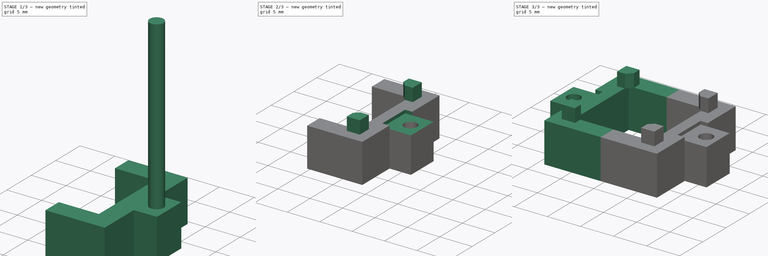
[diagram: build sequence overview — one tinted view per stage of 3, left to right]
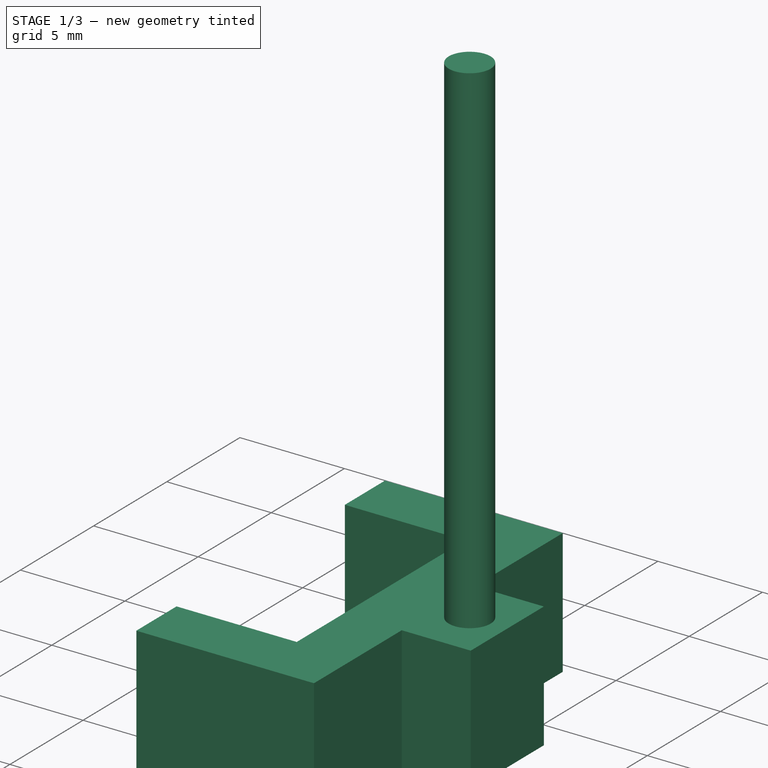
[diagram: stage 1 of 3 — iso view after this stage's code; geometry added in this stage tinted green]
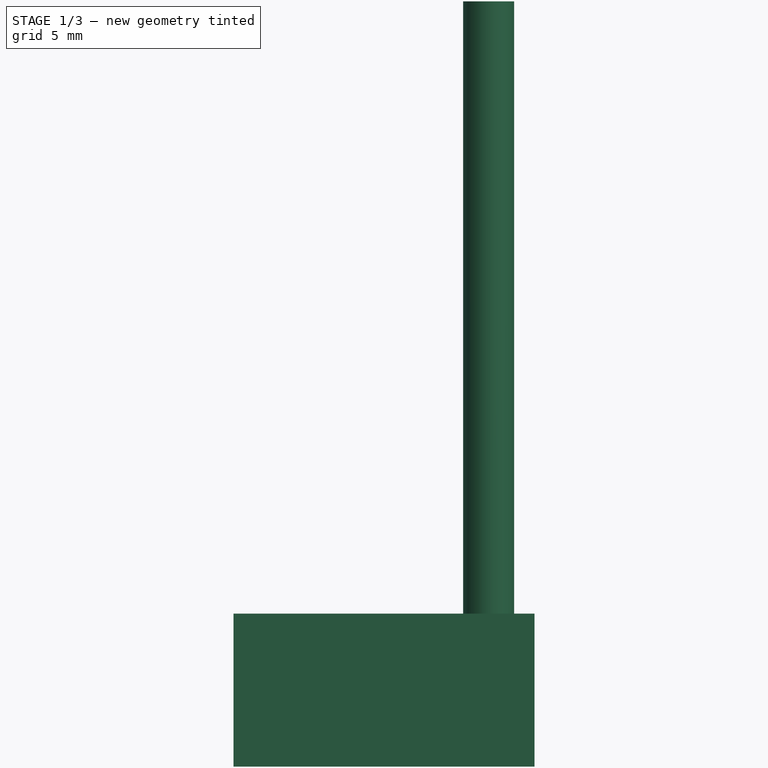
[diagram: stage 1 of 3 — front view after this stage's code; geometry added in this stage tinted green]
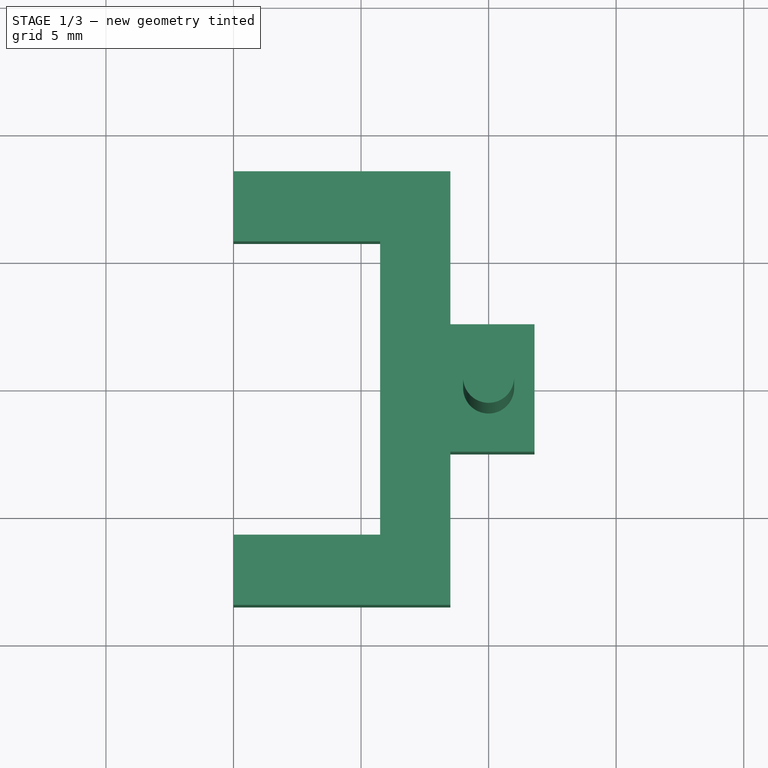
[diagram: stage 1 of 3 — top view after this stage's code; geometry added in this stage tinted green]
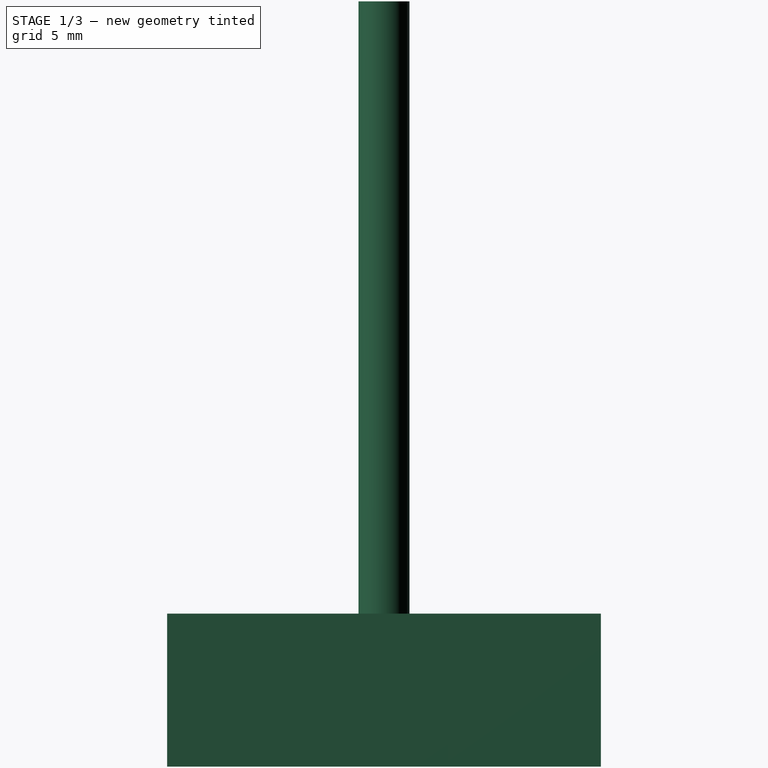
[diagram: stage 1 of 3 — right view after this stage's code; geometry added in this stage tinted green]
FCSTD DOCUMENT  (FreeCAD 0.15R4606 (Git))
Label: lens_holder
License: All rights reserved
LicenseURL: http://en.wikipedia.org/wiki/All_rights_reserved
objects: Sketcher::SketchObject×5, App::MeasureDistance×4, PartDesign::Pad×3, Part::Cut×1, PartDesign::Pocket×1, Part::Mirroring×1, Part::MultiFuse×1
note: 16 computed .brp shape members not serialized (recipe doc carries the construction recipe); baked Part::Feature solids carry a one-line shape summary decoded from their .brp

FEATURE [Sketcher::SketchObject] Sketch
  sketch-geometry (12):
    g0: LineSegment StartX=0 StartY=8.5 StartZ=0 EndX=8.5 EndY=8.5 EndZ=0
    g1: LineSegment StartX=8.5 StartY=8.5 StartZ=0 EndX=8.5 EndY=2.5 EndZ=0
    g2: LineSegment StartX=0 StartY=8.5 StartZ=0 EndX=0 EndY=5.75 EndZ=0
    g3: LineSegment StartX=0 StartY=5.75 StartZ=0 EndX=5.75 EndY=5.75 EndZ=0
    g4: LineSegment StartX=5.75 StartY=5.75 StartZ=0 EndX=5.75 EndY=-5.75 EndZ=0
    g5: LineSegment StartX=8.5 StartY=2.5 StartZ=0 EndX=11.8 EndY=2.5 EndZ=0
    g6: LineSegment StartX=11.8 StartY=2.5 StartZ=0 EndX=11.8 EndY=-2.5 EndZ=0
    g7: LineSegment StartX=11.8 StartY=-2.5 StartZ=0 EndX=8.5 EndY=-2.5 EndZ=0
    g8: LineSegment StartX=8.5 StartY=-2.5 StartZ=0 EndX=8.5 EndY=-8.5 EndZ=0
    g9: LineSegment StartX=8.5 StartY=-8.5 StartZ=0 EndX=0 EndY=-8.5 EndZ=0
    g10: LineSegment StartX=0 StartY=-8.5 StartZ=0 EndX=0 EndY=-5.75 EndZ=0
    g11: LineSegment StartX=0 StartY=-5.75 StartZ=0 EndX=5.75 EndY=-5.75 EndZ=0
  constraints (35):
    c: Horizontal(g0)
    c: Coincident(g0,g1)
    c: Vertical(g1)
    c: PointOnObject(g0,g-2)
    c: Distance(g0) = 8.5
    c: Vertical(g2)
    c: Coincident(g2,g3)
    c: Horizontal(g3)
    c: Coincident(g3,g4)
    c: Vertical(g4)
    c: Horizontal(g5)
    c: Coincident(g5,g6)
    c: Vertical(g6)
    c: Coincident(g6,g7)
    c: Horizontal(g7)
    c: Coincident(g1,g5)
    c: Coincident(g7,g8)
    c: Vertical(g8)
    c: Coincident(g8,g9)
    c: Horizontal(g9)
    c: Coincident(g9,g10)
    c: Vertical(g10)
    c: Coincident(g10,g11)
    c: Horizontal(g11)
    c: Coincident(g4,g11)
    c: Coincident(g2,g0)
    c: PointOnObject(g10,g-2)
    c: Symmetric(g2,g10,g-1)
    c: DistanceY(g9,g0) = 17
    c: Symmetric(g7,g1,g-1)
    c: DistanceY(g2,g10) = -11.5
    c: Equal(g2,g10)
    c: DistanceX(g10,g4) = 5.75
    c: Distance(g6) = 5
    c: Distance(g7,g6) = 3.3
FEATURE [PartDesign::Pad] Pad
  Length = 6
  Length2 = 100
  Sketch = -> Sketch
  Type = 0
FEATURE [Sketcher::SketchObject] Sketch002
  sketch-geometry (1):
    g0: Circle CenterX=10 CenterY=0 CenterZ=0 NormalX=0 NormalY=0 NormalZ=1 Radius=1
  constraints (3):
    c: PointOnObject(g0,g-1)
    c: Radius(g0) = 1
    c: Distance(g-1,g0) = 10
FEATURE [PartDesign::Pad] Pad002  label="Screw Hole"
  Length = 30
  Length2 = 100
  Sketch = -> Sketch002
  Type = 0
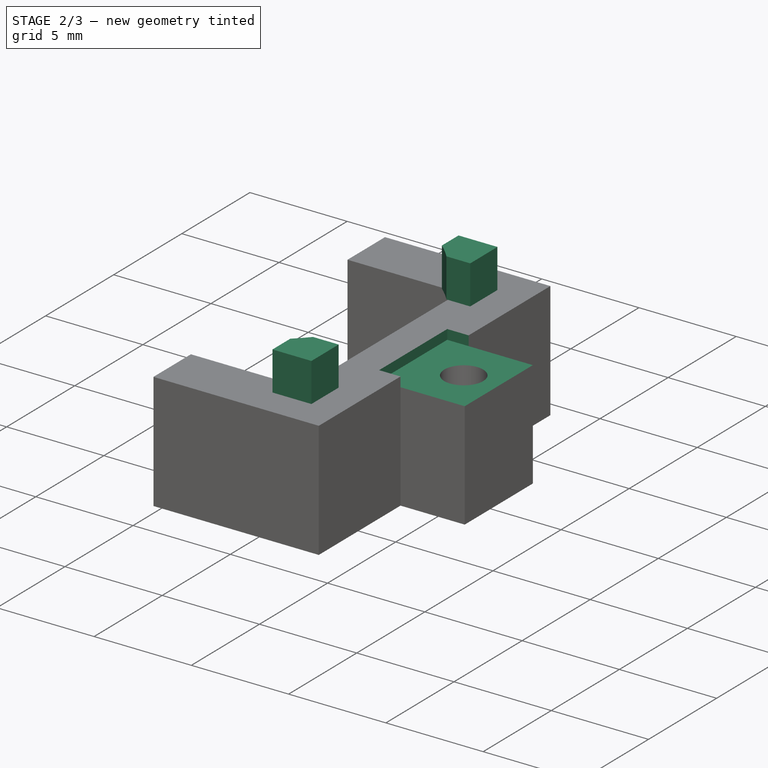
[diagram: stage 2 of 3 — iso view after this stage's code; geometry added in this stage tinted green]
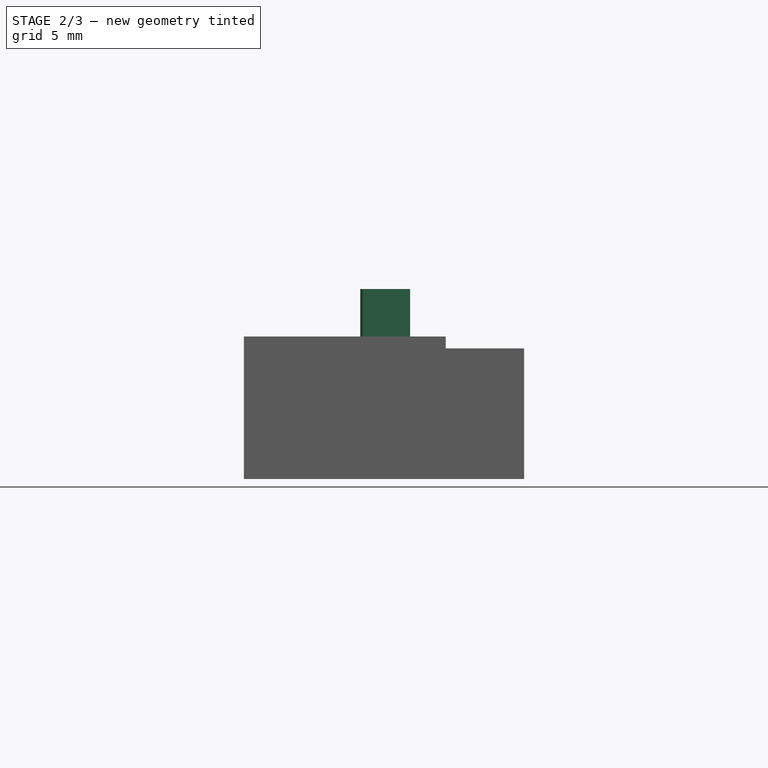
[diagram: stage 2 of 3 — front view after this stage's code; geometry added in this stage tinted green]
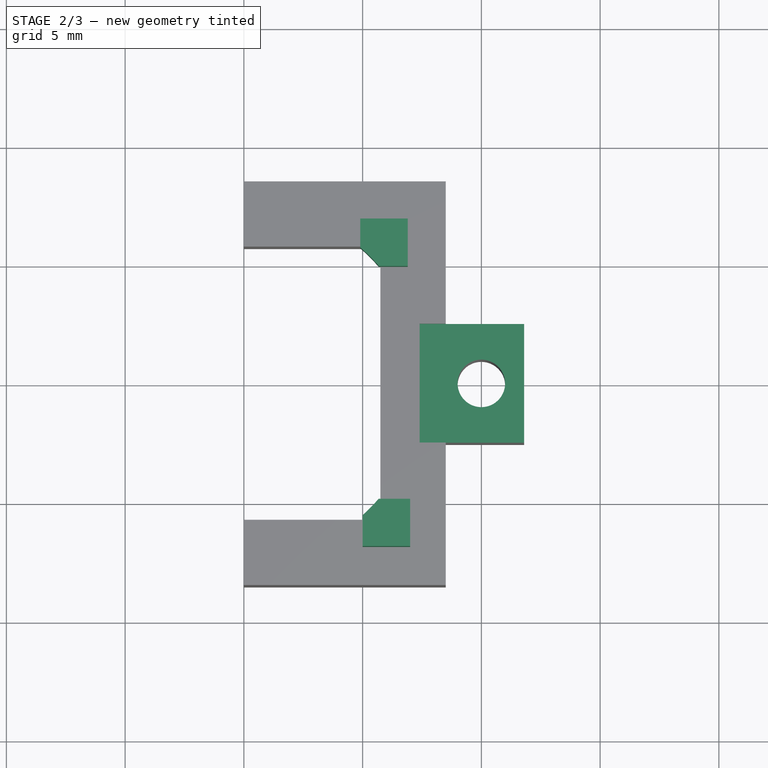
[diagram: stage 2 of 3 — top view after this stage's code; geometry added in this stage tinted green]
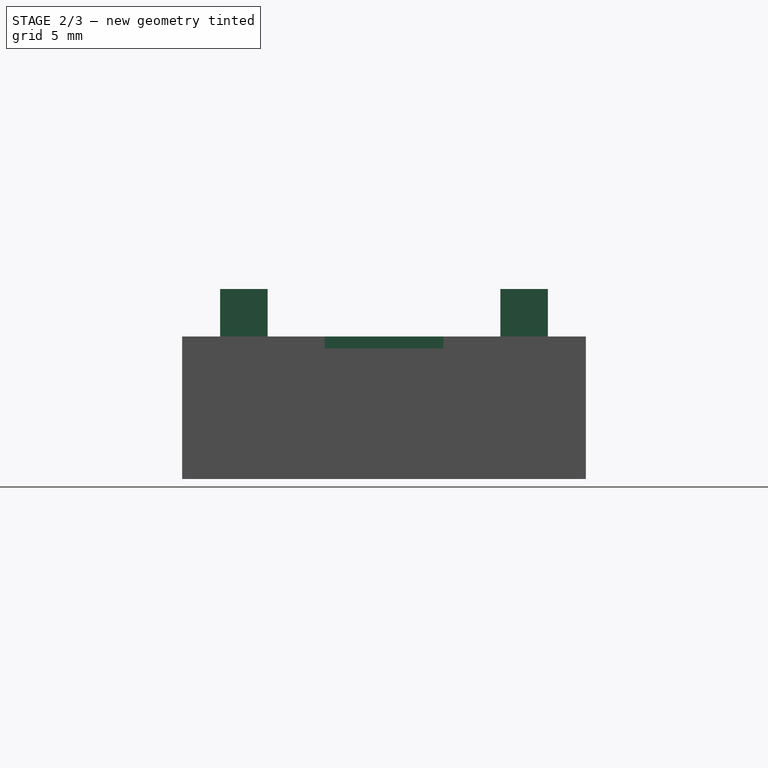
[diagram: stage 2 of 3 — right view after this stage's code; geometry added in this stage tinted green]
FEATURE [Sketcher::SketchObject] Sketch001
  Placement = pos=(0,0,6) rot=(0,0,1;0rad)
  Support = -> Pad [Face14]
  sketch-geometry (10):
    g0: LineSegment StartX=4.9 StartY=6.9 StartZ=0 EndX=6.9 EndY=6.9 EndZ=0
    g1: LineSegment StartX=6.9 StartY=6.9 StartZ=0 EndX=6.9 EndY=4.9 EndZ=0
    g2: LineSegment StartX=7 StartY=-4.9 StartZ=0 EndX=7 EndY=-6.9 EndZ=0
    g3: LineSegment StartX=7 StartY=-6.9 StartZ=0 EndX=5 EndY=-6.9 EndZ=0
    g4: ArcOfCircle CenterX=0 CenterY=0 CenterZ=0 NormalX=0 NormalY=0 NormalZ=1 Radius=7.5 StartAngle=0.711979 EndAngle=0.858817
    g5: LineSegment StartX=4.9 StartY=6.9 StartZ=0 EndX=4.9 EndY=5.67803 EndZ=0
    g6: LineSegment StartX=5.67803 StartY=4.9 StartZ=0 EndX=6.9 EndY=4.9 EndZ=0
    g7: ArcOfCircle CenterX=0 CenterY=0 CenterZ=0 NormalX=0 NormalY=0 NormalZ=1 Radius=7.5 StartAngle=5.44212 EndAngle=5.57121
    g8: LineSegment StartX=5.67803 StartY=-4.9 StartZ=0 EndX=7 EndY=-4.9 EndZ=0
    g9: LineSegment StartX=5 StartY=-5.59017 StartZ=0 EndX=5 EndY=-6.9 EndZ=0
  constraints (30):
    c: Coincident(g0,g1)
    c: Horizontal(g0)
    c: Vertical(g1)
    c: Coincident(g2,g3)
    c: Horizontal(g3)
    c: Vertical(g2)
    c: Distance(g3) = 2
    c: Distance(g0) = 2
    c: DistanceY(g0,g1) = -2
    c: Radius(g4) = 7.5
    c: Coincident(g4,g-1)
    c: Vertical(g5)
    c: Coincident(g5,g4)
    c: Coincident(g0,g5)
    c: Horizontal(g6)
    c: Coincident(g1,g6)
    c: Coincident(g4,g6)
    c: DistanceX(g-1,g0) = 4.9
    c: DistanceY(g-1,g1) = 4.9
    c: Coincident(g-1,g7)
    c: Radius(g7) = 7.5
    c: Horizontal(g8)
    c: Coincident(g2,g8)
    c: Coincident(g7,g8)
    c: Vertical(g9)
    c: Coincident(g7,g9)
    c: Coincident(g3,g9)
    c: Distance(g2) = 2
    c: DistanceX(g-1,g3) = 5
    c: DistanceY(g-1,g2) = -4.9
FEATURE [PartDesign::Pad] Pad001
  Length = 2
  Length2 = 100
  Sketch = -> Sketch001
  Type = 0
FEATURE [Part::Cut] Cut
  Base = -> Pad001
  Tool = -> Pad002
FEATURE [Sketcher::SketchObject] Sketch003
  Placement = pos=(0,0,6) rot=(0,0,1;0rad)
  Support = -> Cut [Face5]
  sketch-geometry (4):
    g0: LineSegment StartX=7.4 StartY=2.5 StartZ=0 EndX=12.4 EndY=2.5 EndZ=0
    g1: LineSegment StartX=12.4 StartY=2.5 StartZ=0 EndX=12.4 EndY=-2.5 EndZ=0
    g2: LineSegment StartX=12.4 StartY=-2.5 StartZ=0 EndX=7.4 EndY=-2.5 EndZ=0
    g3: LineSegment StartX=7.4 StartY=-2.5 StartZ=0 EndX=7.4 EndY=2.5 EndZ=0
  constraints (12):
    c: Coincident(g0,g1)
    c: Coincident(g1,g2)
    c: Coincident(g2,g3)
    c: Coincident(g3,g0)
    c: Horizontal(g0)
    c: Horizontal(g2)
    c: Vertical(g1)
    c: Vertical(g3)
    c: DistanceX(g-1,g0) = 7.4
    c: Symmetric(g0,g1,g-1)
    c: Distance(g2) = 5
    c: Distance(g1) = 5
FEATURE [Sketcher::SketchObject] Sketch004
  Placement = pos=(0,0,6) rot=(0,0,1;0rad)
  Support = -> Pad001 [Face5]
  sketch-geometry (4):
    g0: LineSegment StartX=7.6 StartY=3 StartZ=0 EndX=12.6 EndY=3 EndZ=0
    g1: LineSegment StartX=12.6 StartY=3 StartZ=0 EndX=12.6 EndY=-3 EndZ=0
    g2: LineSegment StartX=12.6 StartY=-3 StartZ=0 EndX=7.6 EndY=-3 EndZ=0
    g3: LineSegment StartX=7.6 StartY=-3 StartZ=0 EndX=7.6 EndY=3 EndZ=0
  constraints (12):
    c: Coincident(g0,g1)
    c: Coincident(g1,g2)
    c: Coincident(g2,g3)
    c: Coincident(g3,g0)
    c: Horizontal(g0)
    c: Horizontal(g2)
    c: Vertical(g1)
    c: Vertical(g3)
    c: DistanceX(g-1,g0) = 7.6
    c: Symmetric(g0,g1,g-1)
    c: Distance(g2) = 5
    c: Distance(g1) = 6
FEATURE [PartDesign::Pocket] Pocket
  Length = 0.5
  Sketch = -> Sketch003
  Type = 0
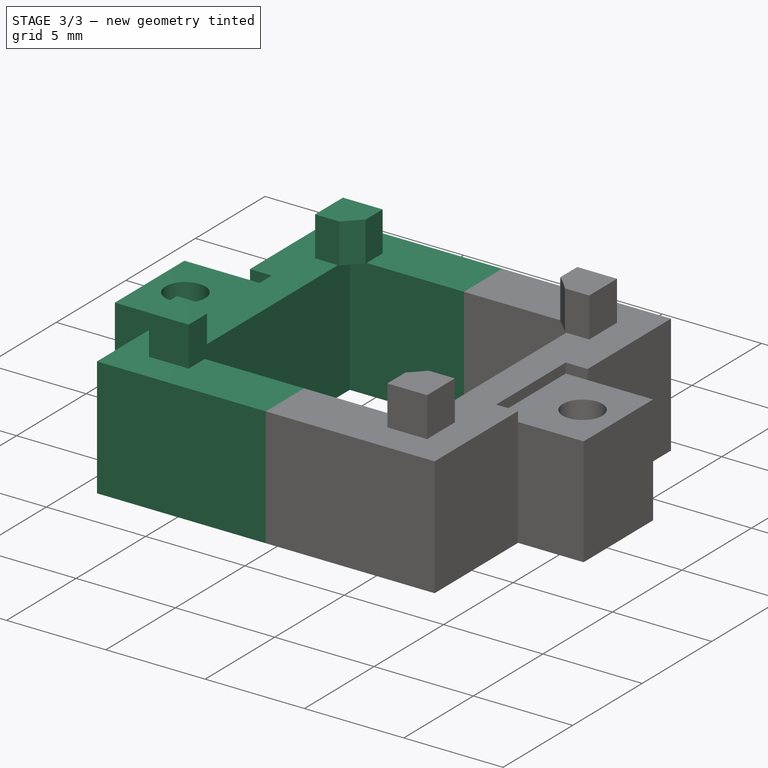
[diagram: stage 3 of 3 — iso view after this stage's code; geometry added in this stage tinted green]
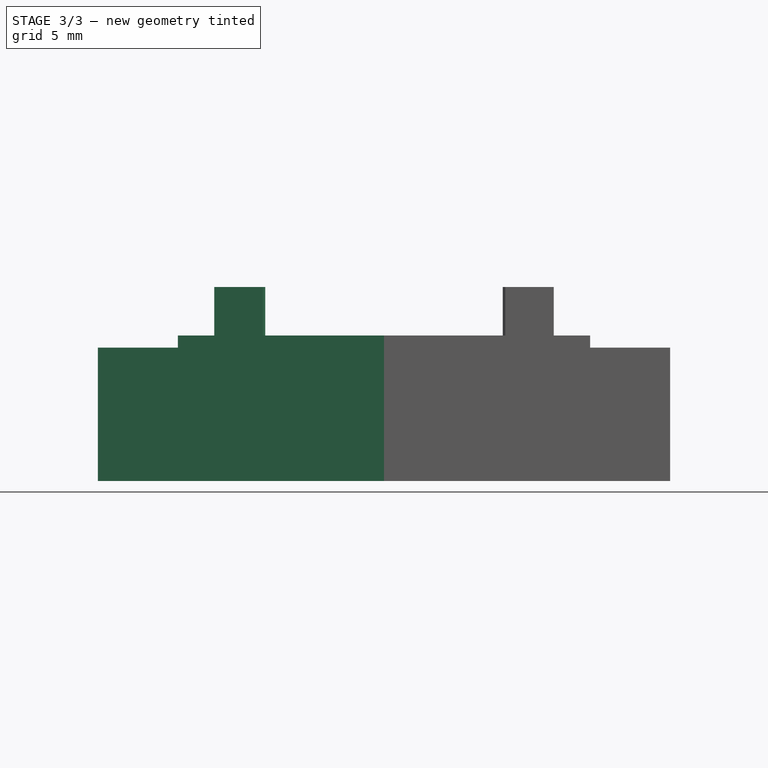
[diagram: stage 3 of 3 — front view after this stage's code; geometry added in this stage tinted green]
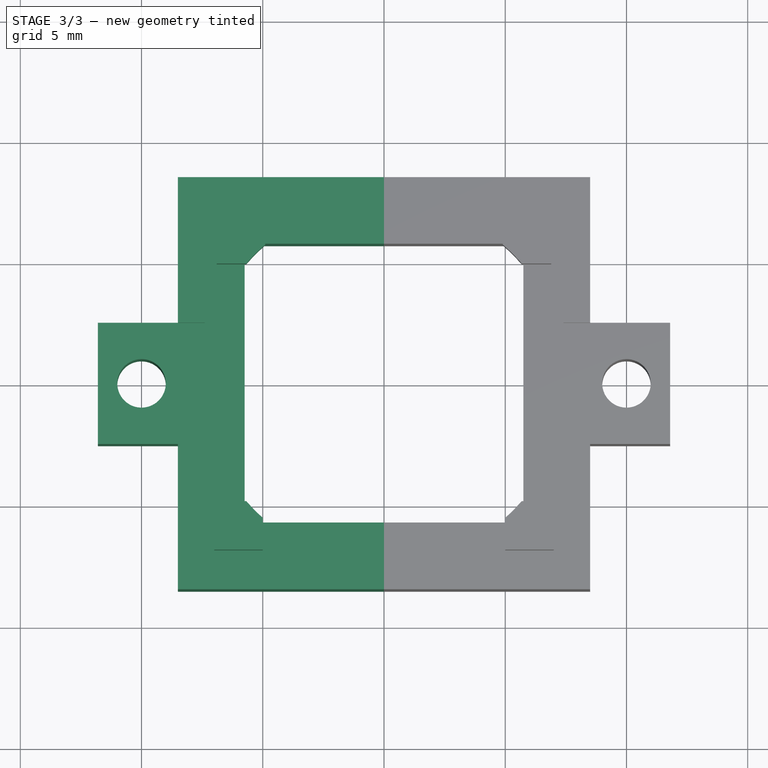
[diagram: stage 3 of 3 — top view after this stage's code; geometry added in this stage tinted green]
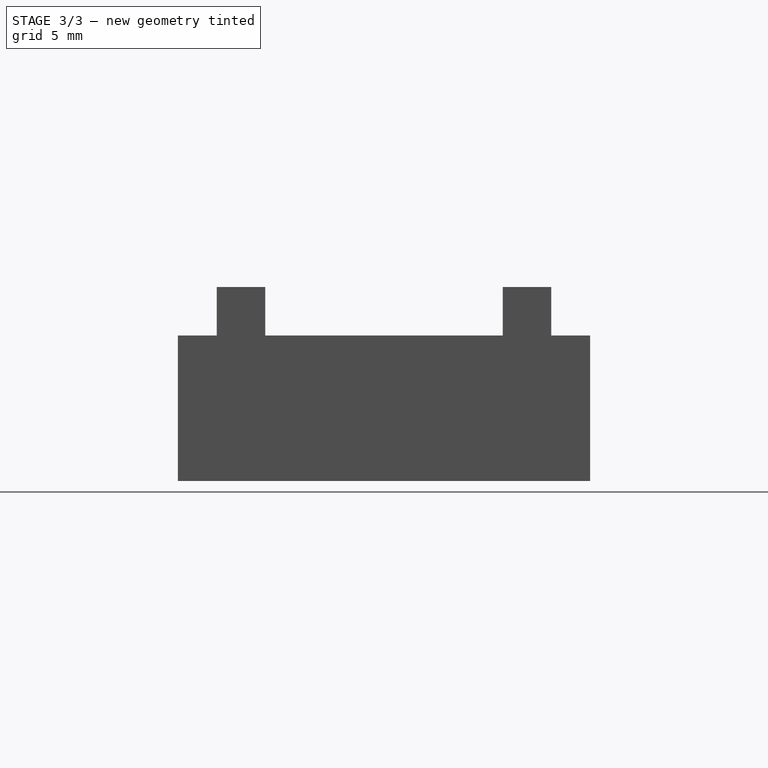
[diagram: stage 3 of 3 — right view after this stage's code; geometry added in this stage tinted green]
FEATURE [Part::Mirroring] Part__Mirroring  label="Pocket (Mirror #1)"
  Base = (0,0,0)
  Normal = (1,0,0)
  Source = -> Pocket
FEATURE [Part::MultiFuse] Fusion
  Shapes = -> [Part__Mirroring,Pocket]
FEATURE [App::MeasureDistance] Distance  label="Distance: 15.124"
  Distance = 15.1237
  P1 = (7.52364,-2.47238,4.8)
  P2 = (-7.6,-2.5,4.8)
FEATURE [App::MeasureDistance] Distance001  label="Distance: 5.000"
  Distance = 5
  P1 = (7.4,2.5,4.8)
  P2 = (7.4,-2.5,4.8)
FEATURE [App::MeasureDistance] Distance002  label="Distance: 4.787"
  Distance = 4.78732
  P1 = (-8.5,-8.5,4.8)
  P2 = (-8.5,-8.5,0.0126847)
FEATURE [App::MeasureDistance] Distance003  label="Distance: 5.907"
  Distance = 5.90739
  P1 = (-8.5,-8.5,6)
  P2 = (-8.5,-8.5,0.0926138)
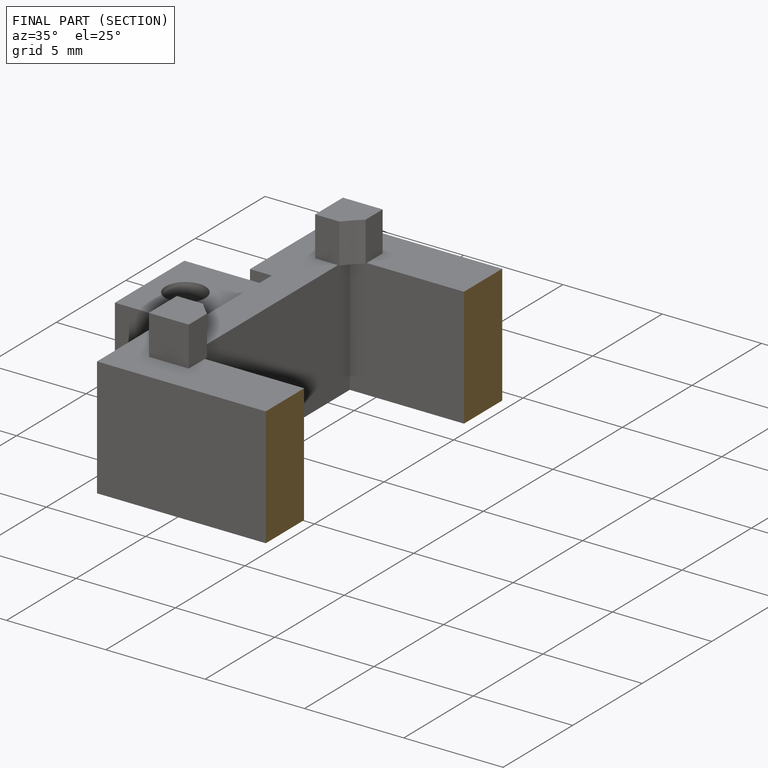
[diagram: finished part — half-section view (interior)]
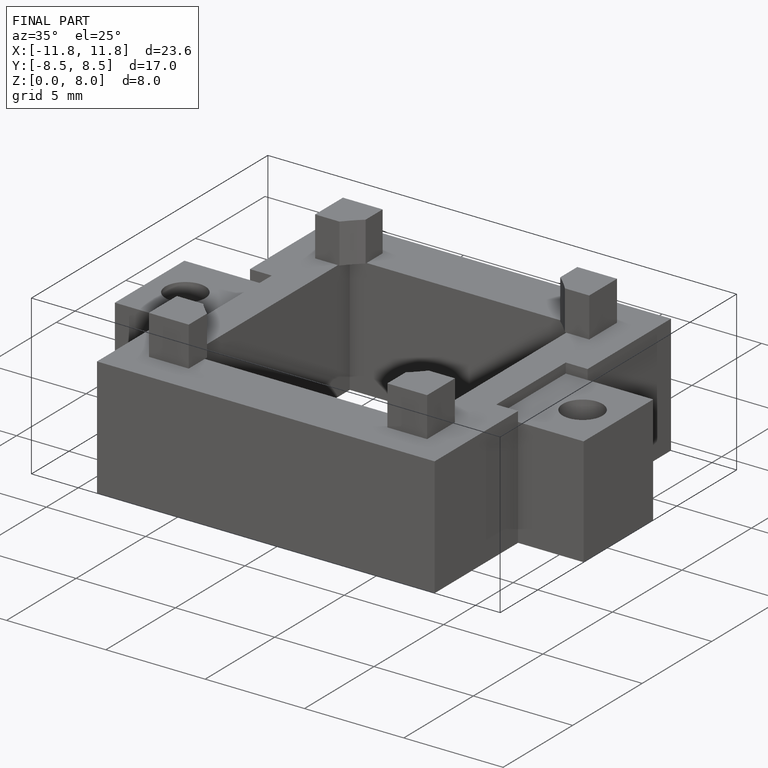
[diagram: finished part — iso view with bounding-box wireframe]
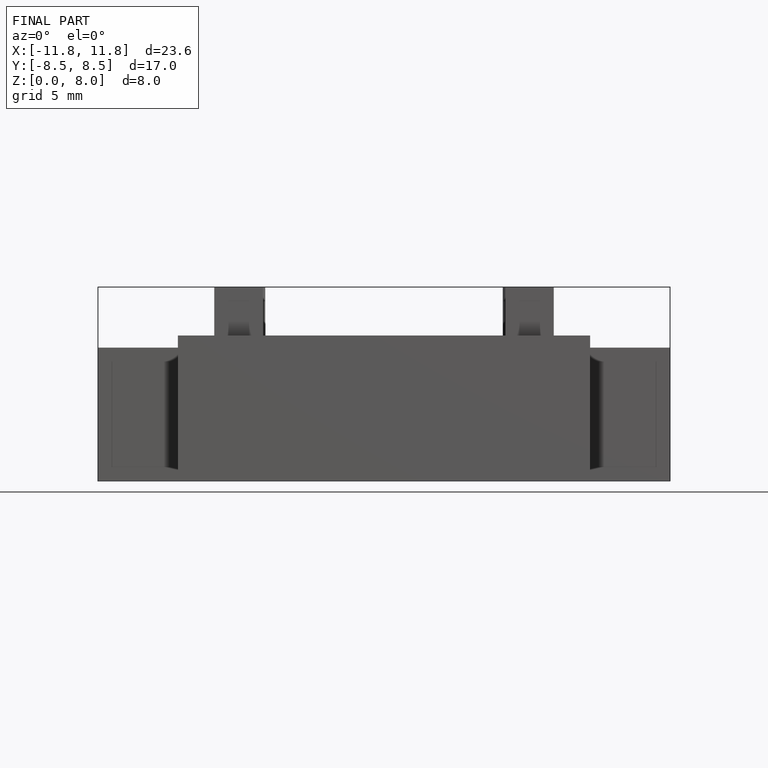
[diagram: finished part — front view with bounding-box wireframe]
